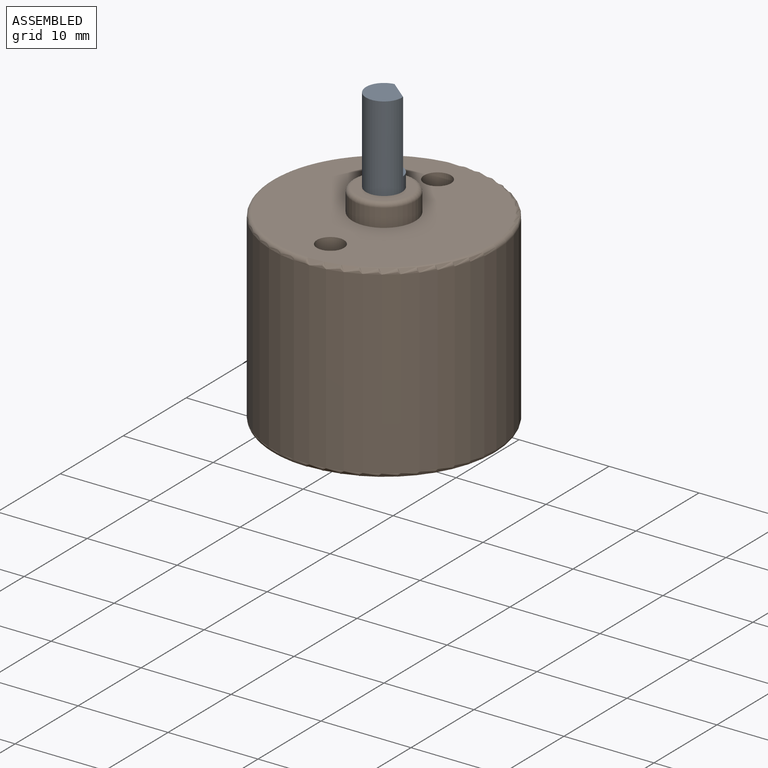
[diagram: assembled view]
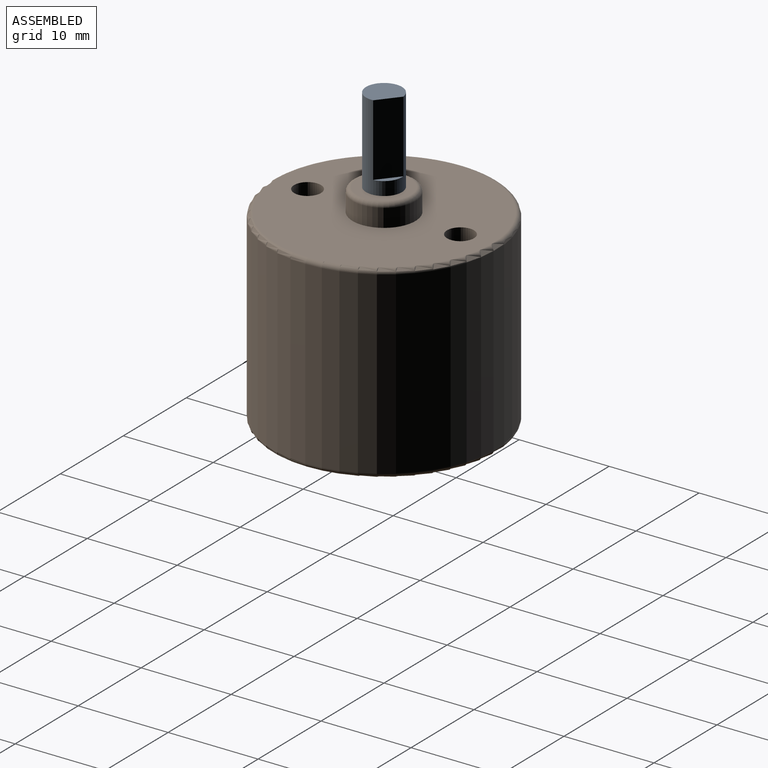
[diagram: assembled view, second angle]
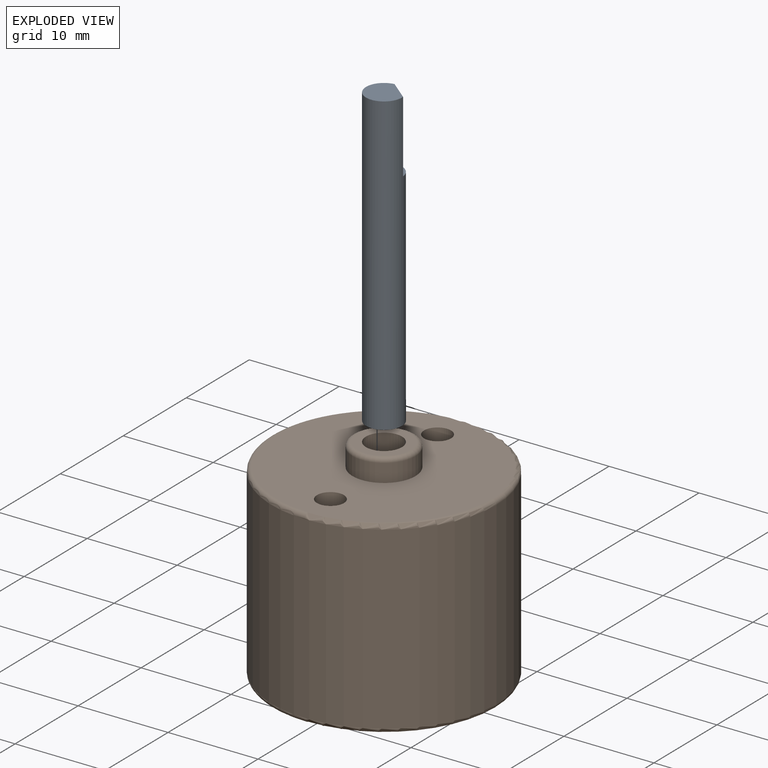
[diagram: exploded view]
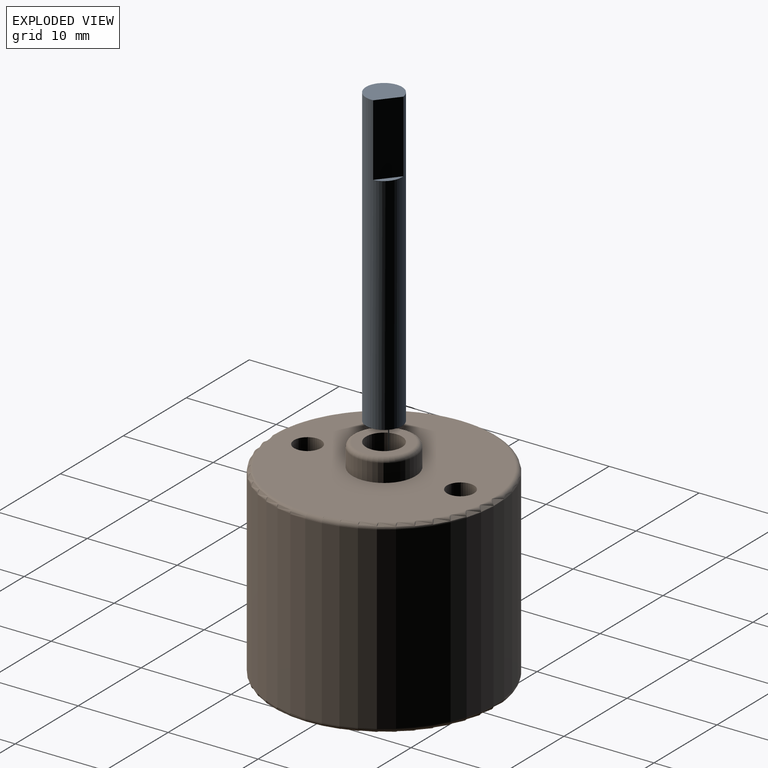
[diagram: exploded view, second angle]
ASSEMBLY  parts=2 mates=2
PART A: 5 faces, bbox 4x4x33 mm
  f0: cylinder r=2mm len=33mm, axis (0,0,-1), area 389.2mm2, adj f1,f2,f3,f4
  f1: plane 4x3.4mm, normal (0,0,1), area 11.4mm2, adj f0,f3
  f2: plane 4x4mm, normal (0,0,-1), area 12.6mm2, adj f0
  f3: plane 8x2.86mm, normal (0,1,0), area 22.9mm2, adj f0,f1,f4
  f4: plane 2.86x0.6mm, normal (0,0,1), area 1.2mm2, adj f0,f3
PART B: 11 faces, bbox 27.1x27.1x23.5 mm
  f0: cylinder r=12.5mm len=25mm, axis (0,0,-1), area 1570.8mm2, adj f6,f7
  f1: plane 24x24mm, normal (0,0,1), area 399.8mm2, adj f3,f7,f8,f9
  f2: plane 24x24mm, normal (0,0,-1), area 425.7mm2, adj f6,f8,f9,f10
  f3: cylinder r=3.5mm len=7mm, axis (0,0,-1), area 44mm2, adj f1,f5
  f4: plane 6x6mm, normal (0,0,1), area 15.7mm2, adj f5,f10
  f5: torus R=3mm, axis (0,0,1), area 16.4mm2, adj f3,f4
  f6: torus R=12mm, axis (0,0,1), area 60.8mm2, adj f0,f2
  f7: torus R=12mm, axis (0,0,1), area 60.8mm2, adj f0,f1
  f8: cylinder r=1.5mm len=21mm, axis (0,0,1), area 197.9mm2, adj f1,f2
  f9: cylinder r=1.5mm len=21mm, axis (0,0,1), area 197.9mm2, adj f1,f2
  f10: cylinder r=2mm len=23.5mm, axis (0,0,1), area 295.3mm2, adj f2,f4
PLACE A rot(axis=(0,0,-1),39.1deg) t=(0,0,-10.5)mm
PLACE B t=(0,0,-10.5)mm fixed
MATE cylindrical A.f0 <-> B.f0  axis (0,0,-1) through (0,0,6)mm
MATE planar A.f0 <-> B.f0  axis (0,0,-1) through (0,0,-10.5)mm
